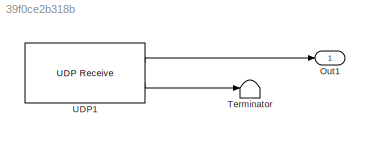
MODEL slx_39f0ce2b318b
KIND model
CONFIG AbsTol = auto
CONFIG EnableMultiTasking = off
CONFIG FixedStep = auto
CONFIG MaxStep = auto
CONFIG MinStep = auto
CONFIG RelTol = 1e-3
CONFIG SampleTimeConstraint = Unconstrained
CONFIG Solver = FixedStepAuto
CONFIG SolverName = FixedStepAuto
CONFIG StartTime = 0.0
CONFIG StopTime = inf
BLOCK [Outport] Out1
  IconDisplay = Port number
BLOCK [Terminator] Terminator
BLOCK [Reference] UDP1  REF=androidcommunicationlib/UDP Receive
  Ports = [0, 2]
  SourceBlock = androidcommunicationlib/UDP Receive
  SourceProductBaseCode = ANDROID
  SourceProductName = Simulink Support Package for Android Devices
  SourceType = UDP Receive
LINE UDP1:1 -> Out1:1
LINE UDP1:2 -> Terminator:1
